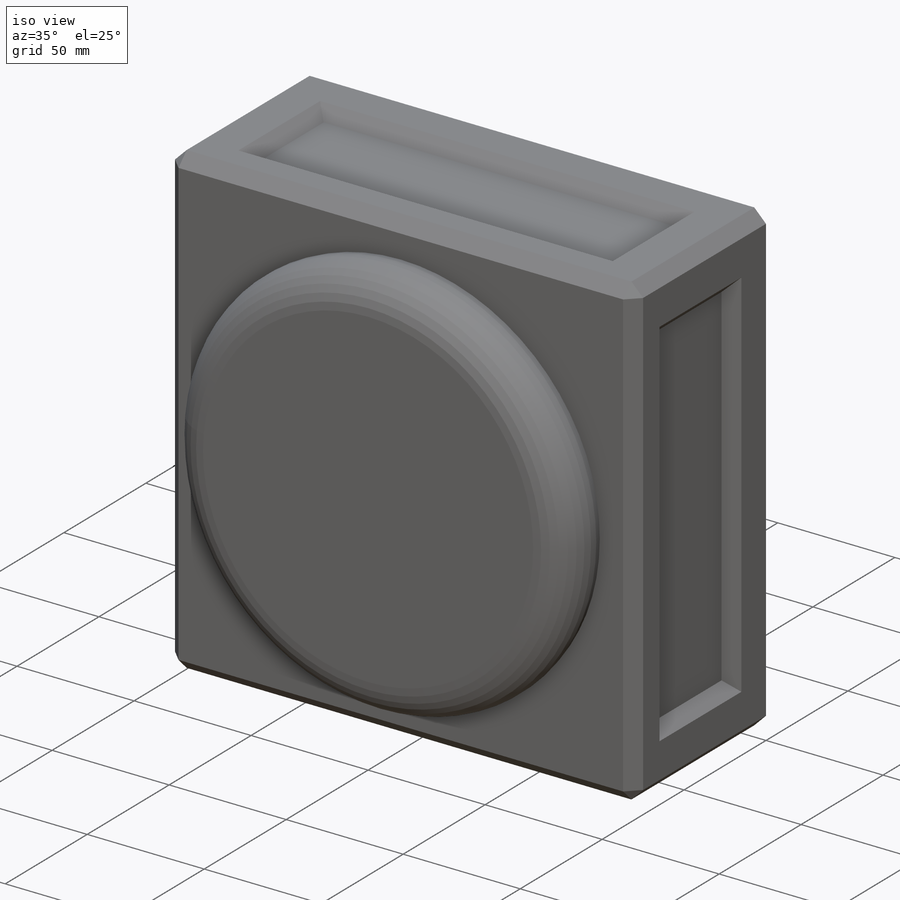
[diagram: iso view]
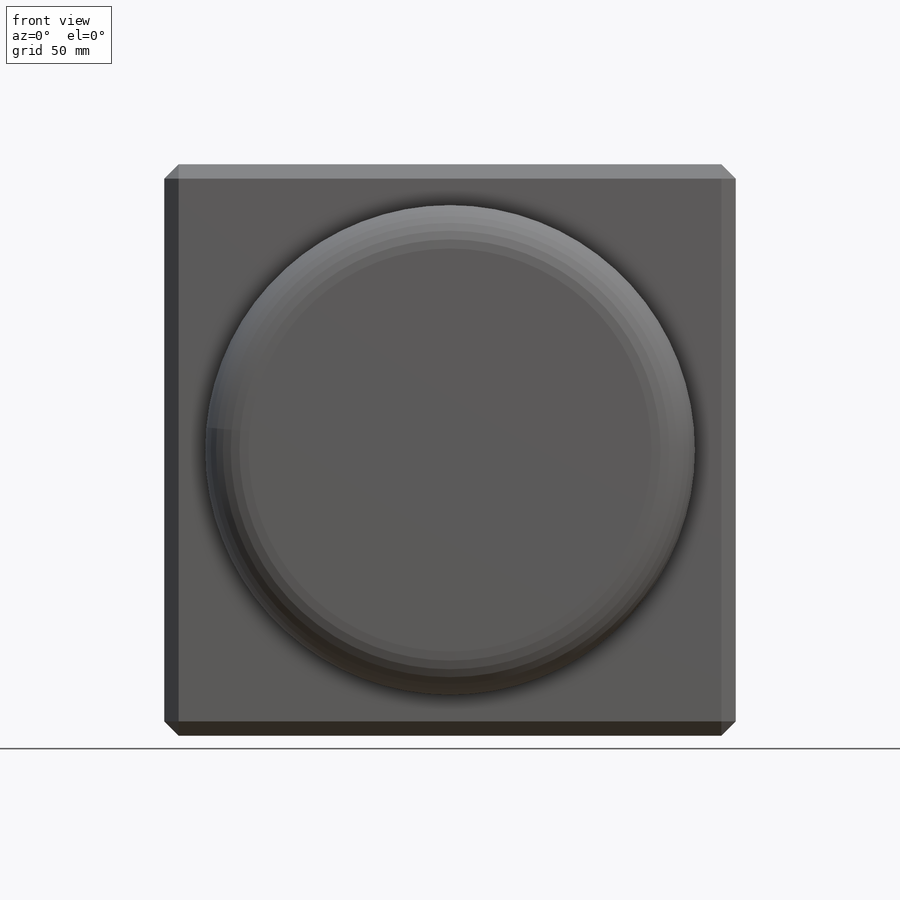
[diagram: front view]
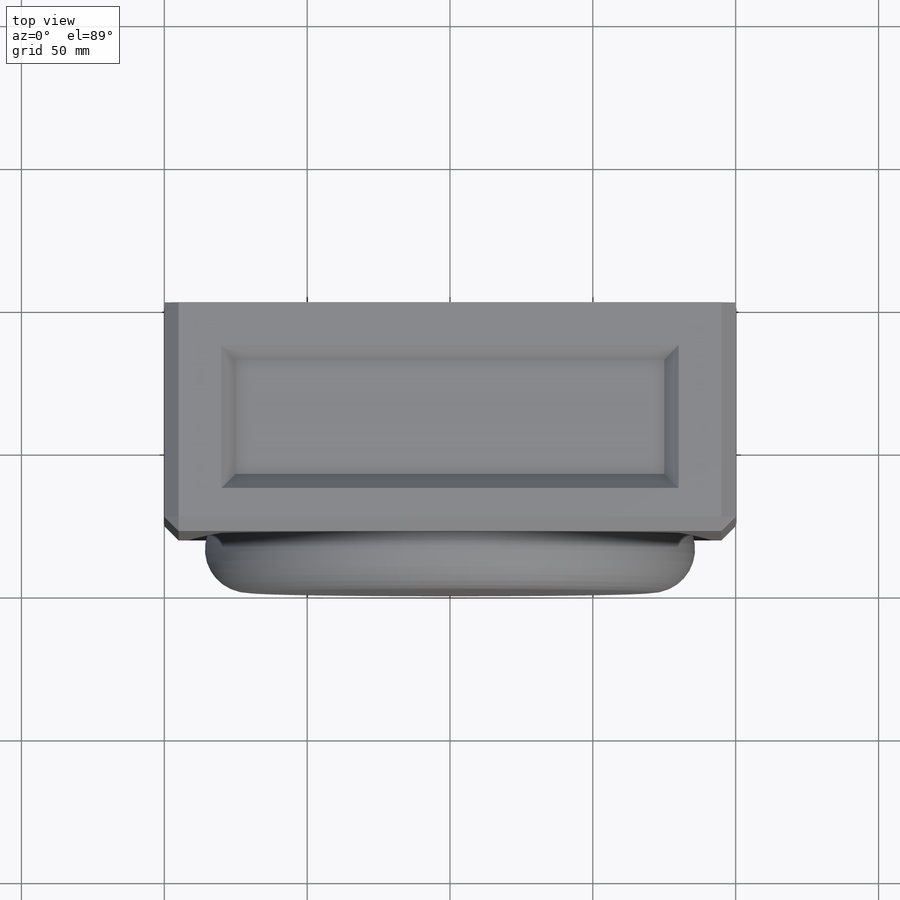
[diagram: top view]
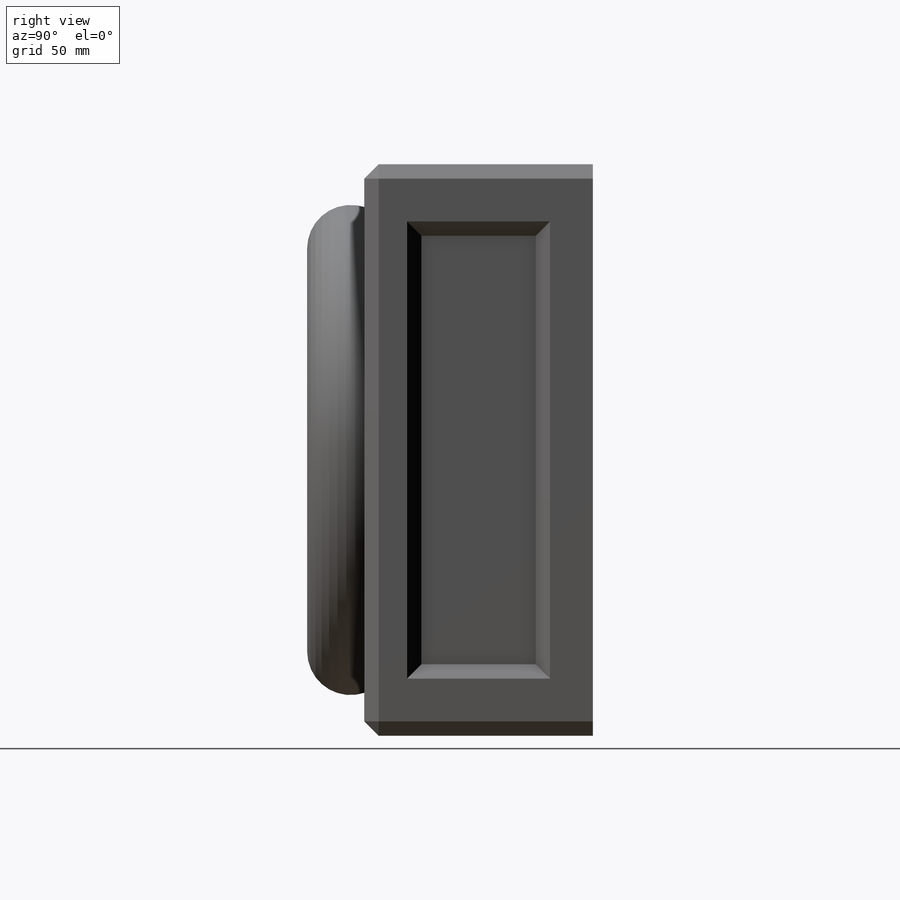
[diagram: right view]
SOLIDWORKS PART (.sldprt)
format: sldprt  version: not decoded by parser v0  size: 257,024 bytes
history: native  units: mm
features: plane x4, sketch x4, extrude x2, material x1, move_body x1, revolve x1, cut_extrude x1, pattern_circular x1, chamfer x1 (+8 scaffold rows collapsed)
feature tree (24):
  scaffold x8  (default folders/planes/origin — collapsed)
  material  "Materiale <non specificato>"
  plane  "Piano frontale"
  plane  "Piano superiore"
  plane  "Piano destro"
  sketch  "Schizzo2"  dims[D1=200.0mm D2=200.0mm]
  extrude  "Estrusione-Estrusione1"  Depth=80mm
  move_body  "Corpo-Sposta/copia1"
  plane  "Piano1"
  sketch  "Schizzo4"  dims[D1=20.0mm D2=85.0mm]
  revolve  "Rivoluzione3"  Angle=360deg
  sketch  "Schizzo5"  dims[D1=20.0mm D2=15.0mm D3=15.0mm D4=20.0mm]
  cut_extrude  "Taglio-Estrusione1"  Depth=5mm
  pattern_circular  "RipetizioneCircolare2"  Count=4 Angle=360deg
  chamfer  "Smusso1"  Distance=5mm Angle=45deg
  sketch  "Schizzo7"
  extrude  "Estrusione-Estrusione2"  [1 undecoded]
decode coverage: 8 of 11 modeling features carry decoded parameters
note: 1 parameter value undecoded
note: suppression state not decoded; provenance and decode notes live in map.json
